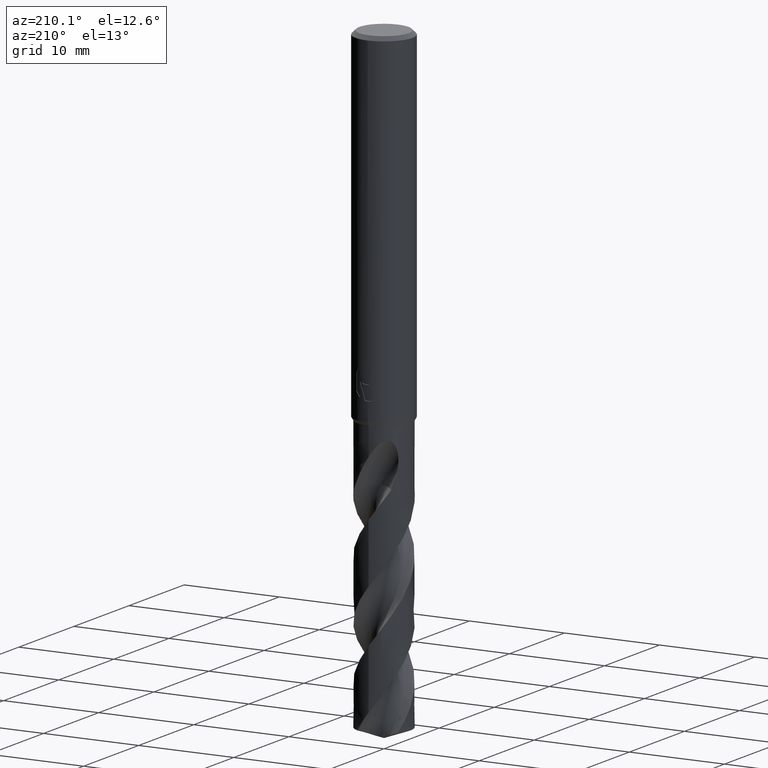
[diagram: clean part render]
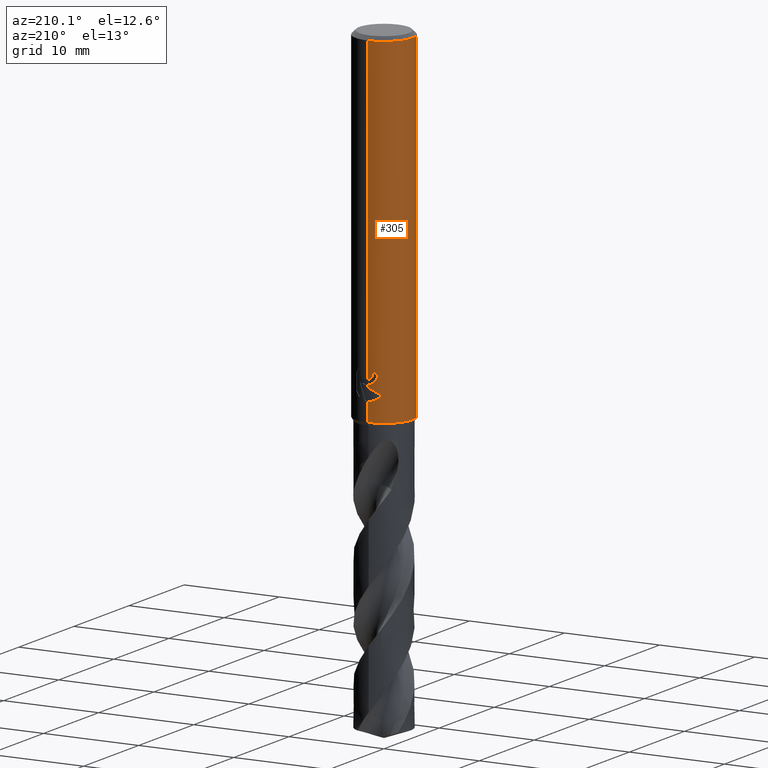
[diagram: same view with one face highlighted and labeled with its STEP entity id]
A machine part, auxiliary view. The second image highlights one B-rep face of the part: STEP entity #305.
In plain terms, the highlighted cylindrical surface (edge-blend (fillet) strip) has radius 3 mm, axis along (-0, -0, 1).
Its self-contained STEP definition (entity closure, byte-faithful):
#273=EDGE_CURVE('',#567,#357,#764,.T.);
#305=ADVANCED_FACE('',(#800),#801,.T.);
#315=VERTEX_POINT('',#812);
#347=EDGE_CURVE('',#453,#445,#846,.T.);
#351=EDGE_CURVE('',#447,#495,#851,.T.);
#357=VERTEX_POINT('',#857);
#395=EDGE_CURVE('',#453,#357,#896,.T.);
#445=VERTEX_POINT('',#951);
#447=VERTEX_POINT('',#953);
#453=VERTEX_POINT('',#959);
#495=VERTEX_POINT('',#1004);
#501=VERTEX_POINT('',#1010);
#513=EDGE_CURVE('',#445,#585,#1024,.T.);
#523=EDGE_CURVE('',#705,#567,#1035,.T.);
#545=EDGE_CURVE('',#315,#447,#1060,.T.);
#549=EDGE_CURVE('',#585,#501,#1065,.T.);
#567=VERTEX_POINT('',#1084);
#585=VERTEX_POINT('',#1103);
#595=VERTEX_POINT('',#1114);
#599=EDGE_CURVE('',#601,#315,#1118,.T.);
#601=VERTEX_POINT('',#1120);
#611=EDGE_CURVE('',#495,#705,#1131,.T.);
#635=EDGE_CURVE('',#501,#595,#1157,.T.);
#667=EDGE_CURVE('',#595,#601,#1192,.T.);
#705=VERTEX_POINT('',#1236);
#764=LINE('',#1294,#1295);
#800=FACE_OUTER_BOUND('',#1671,.T.);
#801=CYLINDRICAL_SURFACE('',#1672,3.0);
#812=CARTESIAN_POINT('',(-1.0350734039088,2.81578107254819,-31.3171221986971));
#846=LINE('',#1959,#1960);
#851=LINE('',#1966,#1967);
#857=CARTESIAN_POINT('',(0.0,3.0,-36.0));
#896=CIRCLE('',#2272,3.0);
#951=CARTESIAN_POINT('',(3.67381906146713E-016,-3.0,-0.399999999999999));
#953=CARTESIAN_POINT('',(-2.06254272401587E-016,3.0,-32.5000801551881));
#959=CARTESIAN_POINT('',(3.67381906146713E-016,-3.0,-36.0));
#1004=CARTESIAN_POINT('',(-3.67366600472444E-016,3.0,-32.7128911336578));
#1010=CARTESIAN_POINT('',(-1.20768269592175E-015,3.0,-32.0232688117743));
#1024=CIRCLE('',#3519,3.0);
#1035=B_SPLINE_CURVE_WITH_KNOTS('',3,(#3533,#3534,#3535,#3536,#3537,#3538,#3539,#3540,#3541,#3542,#3543,#3544,#3545,#3546,#3547,#3548),.UNSPECIFIED.,.F.,.F.,(4,2,2,2,2,2,2,4),(5.66023402257373,6.29060333517104,6.60504483258975,6.91948633000846,7.23392782742717,7.54836932484587,7.86141901111221,8.17446869737855),.UNSPECIFIED.);
#1060=B_SPLINE_CURVE_WITH_KNOTS('',3,(#4255,#4256,#4257,#4258,#4259,#4260,#4261,#4262,#4263,#4264,#4265,#4266,#4267,#4268),.UNSPECIFIED.,.F.,.F.,(4,2,2,2,2,2,4),(3.16026050654945,3.61086409539206,4.06146768423468,4.51207127307729,4.95991823802074,5.40776520296419,5.86282890530594),.UNSPECIFIED.);
#1065=LINE('',#4274,#4275);
#1084=CARTESIAN_POINT('',(-2.46407913303377E-016,3.0,-34.0310253601033));
#1103=CARTESIAN_POINT('',(0.0,3.0,-0.399999999999999));
#1114=CARTESIAN_POINT('',(-0.486378944383045,2.96031003823262,-31.6432837483006));
#1118=CIRCLE('',#4571,3.0);
#1120=CARTESIAN_POINT('',(-0.562333990228013,2.94682549253162,-31.3171221986971));
#1131=ELLIPSE('',#4589,3.34478529612858,3.0);
#1157=B_SPLINE_CURVE_WITH_KNOTS('',3,(#4643,#4644,#4645,#4646,#4647,#4648,#4649,#4650,#4651,#4652,#4653,#4654,#4655,#4656,#4657,#4658,#4659,#4660,#4661,#4662,#4663,#4664,#4665,#4666,#4667,#4668,#4669),.UNSPECIFIED.,.F.,.F.,(4,2,3,2,2,2,2,2,2,2,2,2,4),(-0.54422824842136,-0.27211412421068,0.0,0.272114124210678,0.544228248421357,0.817906359646673,1.09158447087199,1.36255924571499,1.63353402055798,1.90530456554772,2.17707511053746,2.4488456555272,2.72061620051693),.UNSPECIFIED.);
#1192=B_SPLINE_CURVE_WITH_KNOTS('',3,(#4841,#4842,#4843,#4844,#4845,#4846,#4847,#4848,#4849,#4850,#4851,#4852,#4853,#4854,#4855,#4856,#4857,#4858,#4859,#4860,#4861,#4862,#4863,#4864,#4865,#4866,#4867),.UNSPECIFIED.,.F.,.F.,(4,2,3,2,2,2,2,2,2,2,2,2,4),(-0.54422824842136,-0.27211412421068,0.0,0.272114124210678,0.544228248421357,0.817906359646673,1.09158447087199,1.36255924571499,1.63353402055798,1.90530456554772,2.17707511053746,2.4488456555272,2.72061620051693),.UNSPECIFIED.);
#1236=CARTESIAN_POINT('',(-1.337052752443,2.68557069115386,-33.3720803908795));
#1294=CARTESIAN_POINT('',(-3.67381906146713E-016,3.0,-18.2));
#1295=VECTOR('',#5106,1.0);
#1671=EDGE_LOOP('',(#5142,#5143,#5144,#5145,#5146,#5147,#5148,#5149,#5150,#5151,#5152,#5153));
#1672=AXIS2_PLACEMENT_3D('',#5154,#5155,#5156);
#1959=CARTESIAN_POINT('',(3.67381906146713E-016,-3.0,-18.2));
#1960=VECTOR('',#5193,1.0);
#1966=CARTESIAN_POINT('',(-3.67381906146713E-016,3.0,-18.2));
#1967=VECTOR('',#5201,1.0);
#2272=AXIS2_PLACEMENT_3D('',#5232,#5233,#5234);
#3519=AXIS2_PLACEMENT_3D('',#5358,#5359,#5360);
#3533=CARTESIAN_POINT('',(-1.53050642192579,2.58022287650581,-33.0319811255889));
#3534=CARTESIAN_POINT('',(-1.44691631248335,2.62980577312329,-33.2314887010961));
#3535=CARTESIAN_POINT('',(-1.32276760444366,2.69707077181617,-33.4113258593841));
#3536=CARTESIAN_POINT('',(-1.10973155101076,2.78826898930335,-33.6245951706909));
#3537=CARTESIAN_POINT('',(-1.02948996220254,2.81934349084513,-33.6916117853674));
#3538=CARTESIAN_POINT('',(-0.853932698223484,2.87738531454781,-33.8105216600777));
#3539=CARTESIAN_POINT('',(-0.758609991487907,2.90431263574779,-33.8624240602539));
#3540=CARTESIAN_POINT('',(-0.558469552260235,2.94934446690523,-33.9464055954533));
#3541=CARTESIAN_POINT('',(-0.453457041446381,2.96746268462387,-33.9785511641911));
#3542=CARTESIAN_POINT('',(-0.240810292537893,2.99223469602914,-34.0209924679526));
#3543=CARTESIAN_POINT('',(-0.133171317626829,2.99887501234033,-34.0312723335086));
#3544=CARTESIAN_POINT('',(0.0759830626177195,3.00085245803086,-34.0312723335086));
#3545=CARTESIAN_POINT('',(0.183273473896684,2.99629272230549,-34.0210815541729));
#3546=CARTESIAN_POINT('',(0.39543915272815,2.97573303917486,-33.9788816901513));
#3547=CARTESIAN_POINT('',(0.500318639064909,2.95974677710468,-33.9468871509919));
#3548=CARTESIAN_POINT('',(0.600330982089903,2.93932011049205,-33.9050368602192));
#4255=CARTESIAN_POINT('',(-0.944028754947609,2.84759718180646,-30.87109591768));
#4256=CARTESIAN_POINT('',(-1.00479265183033,2.82745289805341,-31.0168616503562));
#4257=CARTESIAN_POINT('',(-1.03510901790186,2.81576798068631,-31.1761006644519));
#4258=CARTESIAN_POINT('',(-1.03510901790186,2.81576798068631,-31.4765030570137));
#4259=CARTESIAN_POINT('',(-1.00479265183033,2.82745289805341,-31.6357420711094));
#4260=CARTESIAN_POINT('',(-0.88326485806506,2.86774146555976,-31.9272735364618));
#4261=CARTESIAN_POINT('',(-0.792109261194285,2.89554580131596,-32.0596991578702));
#4262=CARTESIAN_POINT('',(-0.582867737485067,2.94478284423827,-32.2682275153448));
#4263=CARTESIAN_POINT('',(-0.450640829386874,2.96956027684007,-32.358826497016));
#4264=CARTESIAN_POINT('',(-0.159819744133953,2.99930375982357,-32.4794282329782));
#4265=CARTESIAN_POINT('',(-0.00114290335869099,3.00371168811663,-32.5093686300866));
#4266=CARTESIAN_POINT('',(0.299461057962613,2.98886806232847,-32.5093686300866));
#4267=CARTESIAN_POINT('',(0.459264276215476,2.96836791045541,-32.4785566268234));
#4268=CARTESIAN_POINT('',(0.604975334200916,2.93836771779988,-32.4175314011172));
#4274=CARTESIAN_POINT('',(-3.67381906146713E-016,3.0,-18.2));
#4275=VECTOR('',#5418,1.0);
#4571=AXIS2_PLACEMENT_3D('',#5458,#5459,#5460);
#4589=AXIS2_PLACEMENT_3D('',#5471,#5472,#5473);
#4643=CARTESIAN_POINT('',(0.665621182276714,2.92522622060321,-30.8140957881762));
#4644=CARTESIAN_POINT('',(0.728850563417096,2.91083867849353,-30.877518087557));
#4645=CARTESIAN_POINT('',(0.783900459387161,2.89602337967411,-30.9578702196133));
#4646=CARTESIAN_POINT('',(0.857188692916628,2.87518328740958,-31.1345580124299));
#4647=CARTESIAN_POINT('',(0.875400981188567,2.86943777108584,-31.2309373045166));
#4648=CARTESIAN_POINT('',(0.875400981188567,2.86943777108584,-31.3216420125868));
#4649=CARTESIAN_POINT('',(0.875400981188567,2.86943777108584,-31.412346720657));
#4650=CARTESIAN_POINT('',(0.857188692916629,2.87518328740958,-31.5087260127437));
#4651=CARTESIAN_POINT('',(0.783900459387161,2.89602337967411,-31.6854138055602));
#4652=CARTESIAN_POINT('',(0.728850563417096,2.91083867849353,-31.7657659376165));
#4653=CARTESIAN_POINT('',(0.60202838769231,2.93969645569731,-31.8929750586276));
#4654=CARTESIAN_POINT('',(0.5214778595293,2.95568533572518,-31.9483797636259));
#4655=CARTESIAN_POINT('',(0.34429909105015,2.98152194310932,-32.0221641076746));
#4656=CARTESIAN_POINT('',(0.247628172090375,2.99115403786358,-32.0405166027747));
#4657=CARTESIAN_POINT('',(0.0663244946631877,3.00062654348629,-32.0405166027747));
#4658=CARTESIAN_POINT('',(-0.0299285908853379,3.00115720326599,-32.0224875186921));
#4659=CARTESIAN_POINT('',(-0.206881310600538,2.99416773126077,-31.949244373347));
#4660=CARTESIAN_POINT('',(-0.287593937381961,2.98687212067831,-31.8940404490632));
#4661=CARTESIAN_POINT('',(-0.415200117492864,2.97182576996222,-31.7666805419979));
#4662=CARTESIAN_POINT('',(-0.470604049431396,2.96309385107775,-31.6859121102136));
#4663=CARTESIAN_POINT('',(-0.544183869965539,2.95046729924835,-31.5086992019516));
#4664=CARTESIAN_POINT('',(-0.562348199187247,2.94682278104247,-31.41223219425));
#4665=CARTESIAN_POINT('',(-0.562348199187247,2.94682278104247,-31.2310518309235));
#4666=CARTESIAN_POINT('',(-0.54418386996554,2.95046729924835,-31.134584823222));
#4667=CARTESIAN_POINT('',(-0.4706040494314,2.96309385107775,-30.95737191496));
#4668=CARTESIAN_POINT('',(-0.415200117492863,2.97182576996222,-30.8766034831756));
#4669=CARTESIAN_POINT('',(-0.351303479704285,2.97935997575782,-30.812830162452));
#4841=CARTESIAN_POINT('',(0.665621182276714,2.92522622060321,-30.8140957881762));
#4842=CARTESIAN_POINT('',(0.728850563417096,2.91083867849353,-30.877518087557));
#4843=CARTESIAN_POINT('',(0.783900459387161,2.89602337967411,-30.9578702196133));
#4844=CARTESIAN_POINT('',(0.857188692916628,2.87518328740958,-31.1345580124299));
#4845=CARTESIAN_POINT('',(0.875400981188567,2.86943777108584,-31.2309373045166));
#4846=CARTESIAN_POINT('',(0.875400981188567,2.86943777108584,-31.3216420125868));
#4847=CARTESIAN_POINT('',(0.875400981188567,2.86943777108584,-31.412346720657));
#4848=CARTESIAN_POINT('',(0.857188692916629,2.87518328740958,-31.5087260127437));
#4849=CARTESIAN_POINT('',(0.783900459387161,2.89602337967411,-31.6854138055602));
#4850=CARTESIAN_POINT('',(0.728850563417096,2.91083867849353,-31.7657659376165));
#4851=CARTESIAN_POINT('',(0.60202838769231,2.93969645569731,-31.8929750586276));
#4852=CARTESIAN_POINT('',(0.5214778595293,2.95568533572518,-31.9483797636259));
#4853=CARTESIAN_POINT('',(0.34429909105015,2.98152194310932,-32.0221641076746));
#4854=CARTESIAN_POINT('',(0.247628172090375,2.99115403786358,-32.0405166027747));
#4855=CARTESIAN_POINT('',(0.0663244946631877,3.00062654348629,-32.0405166027747));
#4856=CARTESIAN_POINT('',(-0.0299285908853379,3.00115720326599,-32.0224875186921));
#4857=CARTESIAN_POINT('',(-0.206881310600538,2.99416773126077,-31.949244373347));
#4858=CARTESIAN_POINT('',(-0.287593937381961,2.98687212067831,-31.8940404490632));
#4859=CARTESIAN_POINT('',(-0.415200117492864,2.97182576996222,-31.7666805419979));
#4860=CARTESIAN_POINT('',(-0.470604049431396,2.96309385107775,-31.6859121102136));
#4861=CARTESIAN_POINT('',(-0.544183869965539,2.95046729924835,-31.5086992019516));
#4862=CARTESIAN_POINT('',(-0.562348199187247,2.94682278104247,-31.41223219425));
#4863=CARTESIAN_POINT('',(-0.562348199187247,2.94682278104247,-31.2310518309235));
#4864=CARTESIAN_POINT('',(-0.54418386996554,2.95046729924835,-31.134584823222));
#4865=CARTESIAN_POINT('',(-0.4706040494314,2.96309385107775,-30.95737191496));
#4866=CARTESIAN_POINT('',(-0.415200117492863,2.97182576996222,-30.8766034831756));
#4867=CARTESIAN_POINT('',(-0.351303479704285,2.97935997575782,-30.812830162452));
#5106=DIRECTION('',(0.0,0.0,-1.0));
#5142=ORIENTED_EDGE('',*,*,#549,.T.);
#5143=ORIENTED_EDGE('',*,*,#635,.T.);
#5144=ORIENTED_EDGE('',*,*,#667,.T.);
#5145=ORIENTED_EDGE('',*,*,#599,.T.);
#5146=ORIENTED_EDGE('',*,*,#545,.T.);
#5147=ORIENTED_EDGE('',*,*,#351,.T.);
#5148=ORIENTED_EDGE('',*,*,#611,.T.);
#5149=ORIENTED_EDGE('',*,*,#523,.T.);
#5150=ORIENTED_EDGE('',*,*,#273,.T.);
#5151=ORIENTED_EDGE('',*,*,#395,.F.);
#5152=ORIENTED_EDGE('',*,*,#347,.T.);
#5153=ORIENTED_EDGE('',*,*,#513,.T.);
#5154=CARTESIAN_POINT('',(0.0,0.0,-18.2));
#5155=DIRECTION('',(-0.0,-0.0,1.0));
#5156=DIRECTION('',(0.0,1.0,0.0));
#5193=DIRECTION('',(-0.0,-0.0,1.0));
#5201=DIRECTION('',(0.0,0.0,-1.0));
#5232=CARTESIAN_POINT('',(0.0,0.0,-36.0));
#5233=DIRECTION('',(0.0,0.0,-1.0));
#5234=DIRECTION('',(0.0,1.0,0.0));
#5358=CARTESIAN_POINT('',(0.0,0.0,-0.399999999999999));
#5359=DIRECTION('',(0.0,0.0,-1.0));
#5360=DIRECTION('',(0.0,1.0,0.0));
#5418=DIRECTION('',(0.0,0.0,-1.0));
#5458=CARTESIAN_POINT('',(0.0,0.0,-31.3171221986971));
#5459=DIRECTION('',(0.0,-0.0,1.0));
#5460=DIRECTION('',(0.0,1.0,0.0));
#5471=CARTESIAN_POINT('',(0.0,0.0,-32.7128911336578));
#5472=DIRECTION('',(-0.442195774284071,0.0,0.896918556617774));
#5473=DIRECTION('',(0.896918556617774,-0.0,0.442195774284071));